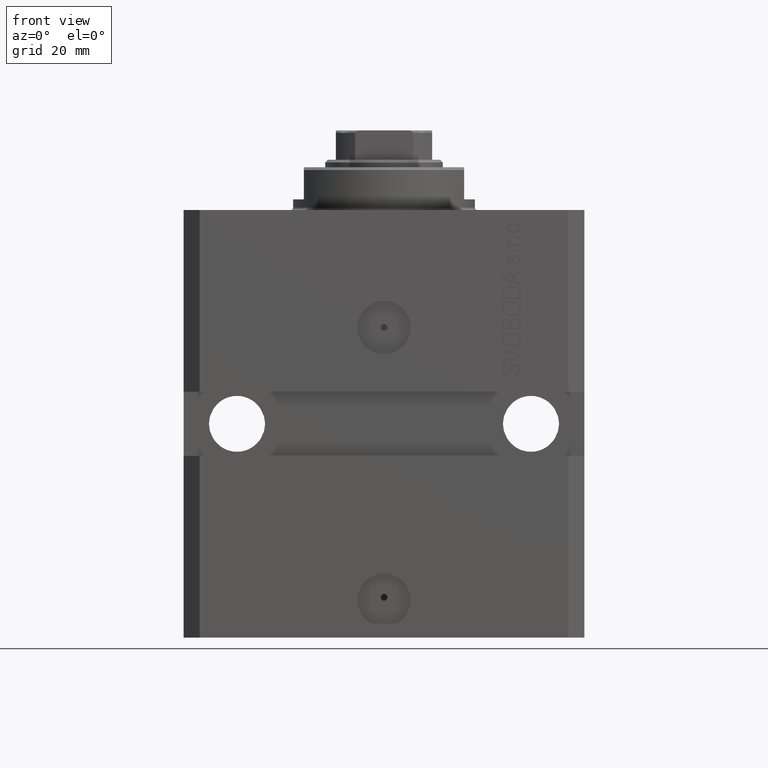
[diagram: clean part render]
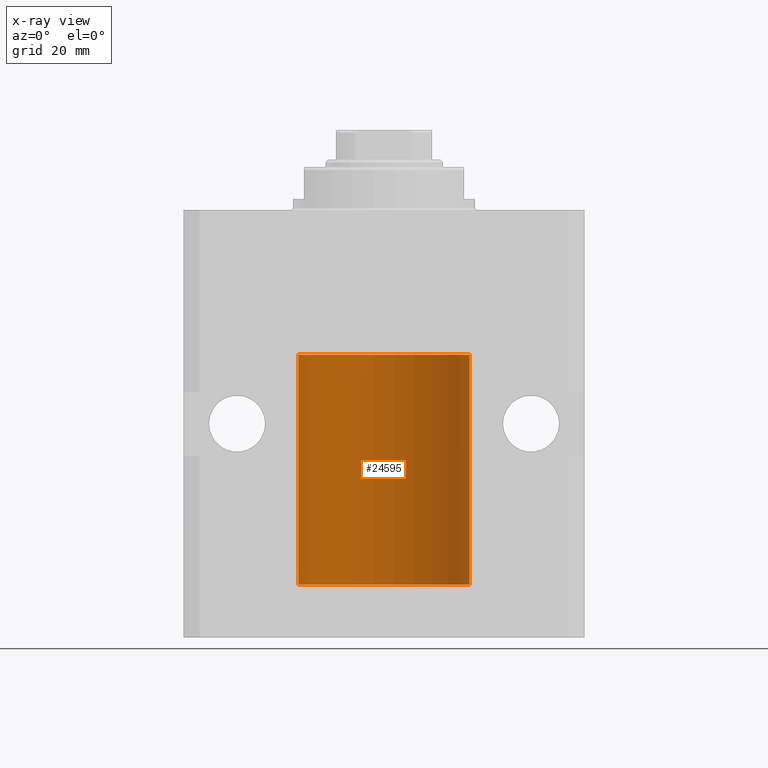
[diagram: x-ray — body ghosted, one internal face saturated and labeled with its STEP entity id]
A machine part, front view, then the same camera in x-ray: the body is ghosted and one INTERNAL B-rep face — a face not visible from any outside direction — is saturated and labeled: STEP entity #24595.
In plain terms, the highlighted cylindrical surface (partial cylindrical patch) has radius 16 mm, axis along (0, 0, 1).
Its self-contained STEP definition (entity closure, byte-faithful):
#553 = CARTESIAN_POINT ( 'NONE',  ( -16.00000000000000000, 1.959434878635765131E-15, -70.09999999999999432 ) ) ;
#1062 = CARTESIAN_POINT ( 'NONE',  ( 0.000000000000000000, 0.000000000000000000, -70.09999999999999432 ) ) ;
#1557 = B_SPLINE_CURVE_WITH_KNOTS ( 'NONE', 3,
 ( #5597, #16634, #9913, #38662, #2248, #13971, #17568, #31960, #42968, #16864, #39131, #17330, #24533, #6312 ),
 .UNSPECIFIED., .F., .F.,
 ( 4, 2, 2, 2, 2, 2, 4 ),
 ( 9.902737362640428303E-19, 0.0002442776652680895785, 0.0004885553305361781812, 0.0009771106610723552782, 0.001221388326340464752, 0.001465665991608574008, 0.001954221322144763465 ),
 .UNSPECIFIED. ) ;
#1957 = FACE_OUTER_BOUND ( 'NONE', #24084, .T. ) ;
#2248 = CARTESIAN_POINT ( 'NONE',  ( -15.99548640841682712, 0.3843705577988820732, -67.50046628527007897 ) ) ;
#3935 = EDGE_CURVE ( 'NONE', #17890, #20955, #33329, .T. ) ;
#4177 = EDGE_CURVE ( 'NONE', #17890, #25087, #33241, .T. ) ;
#4216 = CARTESIAN_POINT ( 'NONE',  ( 16.00000000000000000, -1.835653844722709729E-15, -68.62500000000000000 ) ) ;
#4643 = CYLINDRICAL_SURFACE ( 'NONE', #36522, 16.00000000000000000 ) ;
#5172 = ORIENTED_EDGE ( 'NONE', *, *, #6185, .F. ) ;
#5286 = ORIENTED_EDGE ( 'NONE', *, *, #33015, .T. ) ;
#5597 = CARTESIAN_POINT ( 'NONE',  ( -16.00000000000000000, -9.346608026143465119E-15, -67.37500000000000000 ) ) ;
#5763 = CARTESIAN_POINT ( 'NONE',  ( -16.00000000000000000, 1.959434878635765131E-15, -70.09999999999999432 ) ) ;
#6185 = EDGE_CURVE ( 'NONE', #25087, #35930, #10079, .T. ) ;
#6289 = CARTESIAN_POINT ( 'NONE',  ( -16.00000000000000000, 1.959434878635765131E-15, -27.10000000000000142 ) ) ;
#6312 = CARTESIAN_POINT ( 'NONE',  ( -16.00000000000013145, 3.685127046438747128E-13, -68.62500000000343903 ) ) ;
#6814 = B_SPLINE_CURVE_WITH_KNOTS ( 'NONE', 3,
 ( #31988, #6820, #46113, #46574, #13764, #21424, #20958, #35567 ),
 .UNSPECIFIED., .F., .F.,
 ( 4, 2, 2, 4 ),
 ( 0.0009773326288700682433, 0.001221554802188685399, 0.001465776975507302772, 0.001954221322144537518 ),
 .UNSPECIFIED. ) ;
#6820 = CARTESIAN_POINT ( 'NONE',  ( 15.98778830858103817, 0.6249999999997223332, -67.91847885046213662 ) ) ;
#8389 = CARTESIAN_POINT ( 'NONE',  ( 0.000000000000000000, 0.000000000000000000, -27.10000000000000142 ) ) ;
#9903 = VERTEX_POINT ( 'NONE', #14569 ) ;
#9913 = CARTESIAN_POINT ( 'NONE',  ( -15.99934216141748244, 0.1636497843296345067, -67.39126528029308361 ) ) ;
#10079 = LINE ( 'NONE', #5763, #33310 ) ;
#10207 = CARTESIAN_POINT ( 'NONE',  ( 16.00000000000000000, 0.000000000000000000, -70.09999999999999432 ) ) ;
#10529 = VERTEX_POINT ( 'NONE', #26430 ) ;
#10634 = ORIENTED_EDGE ( 'NONE', *, *, #45733, .T. ) ;
#11158 = ORIENTED_EDGE ( 'NONE', *, *, #4177, .F. ) ;
#11505 = CARTESIAN_POINT ( 'NONE',  ( 15.99070366873610283, 0.5574063959867601170, -68.32639436837555991 ) ) ;
#12998 = CARTESIAN_POINT ( 'NONE',  ( -16.00000000000000000, -9.346608026143465119E-15, -67.37500000000000000 ) ) ;
#13655 = DIRECTION ( 'NONE',  ( 1.000000000000000000, 0.000000000000000000, 0.000000000000000000 ) ) ;
#13764 = CARTESIAN_POINT ( 'NONE',  ( 15.99228275317786441, 0.5002975944204781644, -67.61642014570176684 ) ) ;
#13971 = CARTESIAN_POINT ( 'NONE',  ( -15.99070653155268040, 0.5573233280232966491, -67.67348148680505915 ) ) ;
#14569 = CARTESIAN_POINT ( 'NONE',  ( 16.00000000000013145, 3.665532692826917502E-13, -67.37499999999657518 ) ) ;
#14860 = CARTESIAN_POINT ( 'NONE',  ( 16.00000000000001066, 0.08261762387943044628, -68.62500000000000000 ) ) ;
#15097 = CARTESIAN_POINT ( 'NONE',  ( 16.00000000000000000, -1.835653844722709729E-15, -68.62500000000000000 ) ) ;
#16634 = CARTESIAN_POINT ( 'NONE',  ( -16.00000000000000711, 0.08259886010189028405, -67.37500000000001421 ) ) ;
#16864 = CARTESIAN_POINT ( 'NONE',  ( -15.99070426498502862, 0.5462220647145645813, -68.31460064614141459 ) ) ;
#17330 = CARTESIAN_POINT ( 'NONE',  ( -15.99711699979840951, 0.3253759916140645525, -68.55856151623176231 ) ) ;
#17568 = CARTESIAN_POINT ( 'NONE',  ( -15.98779057735153586, 0.6249419637998054888, -67.83670145863507628 ) ) ;
#17890 = VERTEX_POINT ( 'NONE', #10207 ) ;
#18281 = DIRECTION ( 'NONE',  ( -0.000000000000000000, -0.000000000000000000, 1.000000000000000000 ) ) ;
#18459 = CARTESIAN_POINT ( 'NONE',  ( 15.99934183755190986, 0.1636877470527013101, -68.60872690654070993 ) ) ;
#18712 = AXIS2_PLACEMENT_3D ( 'NONE', #35685, #35451, #13655 ) ;
#20955 = VERTEX_POINT ( 'NONE', #4216 ) ;
#20958 = CARTESIAN_POINT ( 'NONE',  ( 15.99999999999999645, 0.1631343969470158417, -67.37500000000021316 ) ) ;
#21424 = CARTESIAN_POINT ( 'NONE',  ( 15.99711856062700477, 0.3252985083514284281, -67.44140297987711108 ) ) ;
#21875 = LINE ( 'NONE', #553, #38087 ) ;
#22522 = CARTESIAN_POINT ( 'NONE',  ( 15.98778830858101685, 0.6250000000002223777, -68.16311639173024162 ) ) ;
#22543 = DIRECTION ( 'NONE',  ( -0.000000000000000000, -0.000000000000000000, 1.000000000000000000 ) ) ;
#24084 = EDGE_LOOP ( 'NONE', ( #5172, #11158, #29531, #27882, #26321, #10634, #31223, #38388, #5286 ) ) ;
#24533 = CARTESIAN_POINT ( 'NONE',  ( -15.99999999999998934, 0.1631714642025807183, -68.62499999999984368 ) ) ;
#24580 = LINE ( 'NONE', #24810, #46094 ) ;
#24595 = ADVANCED_FACE ( 'NONE', ( #1957 ), #4643, .F. ) ;
#24810 = CARTESIAN_POINT ( 'NONE',  ( 16.00000000000000000, 0.000000000000000000, -70.09999999999999432 ) ) ;
#24849 = VECTOR ( 'NONE', #22543, 1000.000000000000000 ) ;
#25087 = VERTEX_POINT ( 'NONE', #38542 ) ;
#26236 = DIRECTION ( 'NONE',  ( -0.000000000000000000, -0.000000000000000000, 1.000000000000000000 ) ) ;
#26321 = ORIENTED_EDGE ( 'NONE', *, *, #37828, .T. ) ;
#26427 = B_SPLINE_CURVE_WITH_KNOTS ( 'NONE', 3,
 ( #15097, #14860, #18459, #29723, #44321, #11505, #22522, #37132 ),
 .UNSPECIFIED., .F., .F.,
 ( 4, 2, 2, 4 ),
 ( 1.783888443149829469E-18, 0.0002443331572175257886, 0.0004886663144350497342, 0.0009773326288700682433 ),
 .UNSPECIFIED. ) ;
#26430 = CARTESIAN_POINT ( 'NONE',  ( 16.00000000000000000, 0.000000000000000000, -27.10000000000000142 ) ) ;
#27518 = EDGE_CURVE ( 'NONE', #30751, #31783, #21875, .T. ) ;
#27879 = CARTESIAN_POINT ( 'NONE',  ( 15.98778830858070954, 0.6250000000080517815, -67.99999999999916156 ) ) ;
#27882 = ORIENTED_EDGE ( 'NONE', *, *, #35530, .T. ) ;
#27974 = EDGE_CURVE ( 'NONE', #10529, #31783, #40448, .T. ) ;
#29531 = ORIENTED_EDGE ( 'NONE', *, *, #3935, .T. ) ;
#29723 = CARTESIAN_POINT ( 'NONE',  ( 15.99707608081895138, 0.3151028052310259620, -68.54594170697733091 ) ) ;
#30751 = VERTEX_POINT ( 'NONE', #12998 ) ;
#31223 = ORIENTED_EDGE ( 'NONE', *, *, #27974, .T. ) ;
#31783 = VERTEX_POINT ( 'NONE', #6289 ) ;
#31810 = VERTEX_POINT ( 'NONE', #27879 ) ;
#31960 = CARTESIAN_POINT ( 'NONE',  ( -15.98778717651346426, 0.6250289588122136530, -68.08131585687053189 ) ) ;
#31988 = CARTESIAN_POINT ( 'NONE',  ( 15.98778830858070954, 0.6250000000080517815, -67.99999999999916156 ) ) ;
#33015 = EDGE_CURVE ( 'NONE', #30751, #35930, #1557, .T. ) ;
#33241 = CIRCLE ( 'NONE', #18712, 16.00000000000000000 ) ;
#33310 = VECTOR ( 'NONE', #46484, 1000.000000000000000 ) ;
#33329 = LINE ( 'NONE', #33565, #24849 ) ;
#33565 = CARTESIAN_POINT ( 'NONE',  ( 16.00000000000000000, 0.000000000000000000, -70.09999999999999432 ) ) ;
#33645 = DIRECTION ( 'NONE',  ( 1.000000000000000000, 0.000000000000000000, 0.000000000000000000 ) ) ;
#35451 = DIRECTION ( 'NONE',  ( 0.000000000000000000, 0.000000000000000000, 1.000000000000000000 ) ) ;
#35530 = EDGE_CURVE ( 'NONE', #20955, #31810, #26427, .T. ) ;
#35567 = CARTESIAN_POINT ( 'NONE',  ( 16.00000000000013145, 3.665532692826917502E-13, -67.37499999999657518 ) ) ;
#35685 = CARTESIAN_POINT ( 'NONE',  ( 0.000000000000000000, 0.000000000000000000, -70.09999999999999432 ) ) ;
#35930 = VERTEX_POINT ( 'NONE', #43800 ) ;
#36522 = AXIS2_PLACEMENT_3D ( 'NONE', #1062, #26236, #33645 ) ;
#36616 = AXIS2_PLACEMENT_3D ( 'NONE', #8389, #41915, #41682 ) ;
#37132 = CARTESIAN_POINT ( 'NONE',  ( 15.98778830858070954, 0.6250000000080517815, -67.99999999999916156 ) ) ;
#37828 = EDGE_CURVE ( 'NONE', #31810, #9903, #6814, .T. ) ;
#38087 = VECTOR ( 'NONE', #18281, 1000.000000000000000 ) ;
#38388 = ORIENTED_EDGE ( 'NONE', *, *, #27518, .F. ) ;
#38466 = DIRECTION ( 'NONE',  ( -0.000000000000000000, -0.000000000000000000, 1.000000000000000000 ) ) ;
#38542 = CARTESIAN_POINT ( 'NONE',  ( -16.00000000000000000, 1.959434878635765131E-15, -70.09999999999999432 ) ) ;
#38662 = CARTESIAN_POINT ( 'NONE',  ( -15.99707730059171240, 0.3150375992092334654, -67.45402333202571299 ) ) ;
#39131 = CARTESIAN_POINT ( 'NONE',  ( -15.99228023727723702, 0.5003781296993395911, -68.38347829554236057 ) ) ;
#40448 = CIRCLE ( 'NONE', #36616, 16.00000000000000000 ) ;
#41682 = DIRECTION ( 'NONE',  ( 1.000000000000000000, 0.000000000000000000, 0.000000000000000000 ) ) ;
#41915 = DIRECTION ( 'NONE',  ( 0.000000000000000000, 0.000000000000000000, 1.000000000000000000 ) ) ;
#42968 = CARTESIAN_POINT ( 'NONE',  ( -15.98844267028591126, 0.6088369347963314970, -68.16324735024328163 ) ) ;
#43800 = CARTESIAN_POINT ( 'NONE',  ( -16.00000000000013145, 3.685127046438747128E-13, -68.62500000000343903 ) ) ;
#44321 = CARTESIAN_POINT ( 'NONE',  ( 15.99548458234361448, 0.3844468804816183471, -68.49947786696357355 ) ) ;
#45733 = EDGE_CURVE ( 'NONE', #9903, #10529, #24580, .T. ) ;
#46094 = VECTOR ( 'NONE', #38466, 1000.000000000000000 ) ;
#46113 = CARTESIAN_POINT ( 'NONE',  ( 15.98844460043491367, 0.6087869699337551399, -67.83657454967556077 ) ) ;
#46484 = DIRECTION ( 'NONE',  ( -0.000000000000000000, -0.000000000000000000, 1.000000000000000000 ) ) ;
#46574 = CARTESIAN_POINT ( 'NONE',  ( 15.99070695999103542, 0.5461439696927204990, -67.68526802364047512 ) ) ;